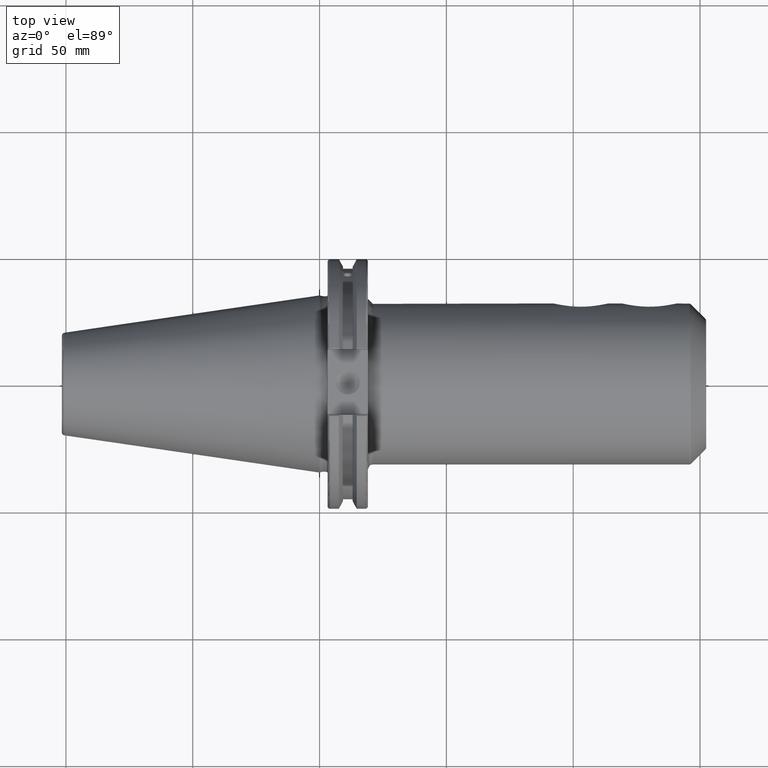
[diagram: clean part render]
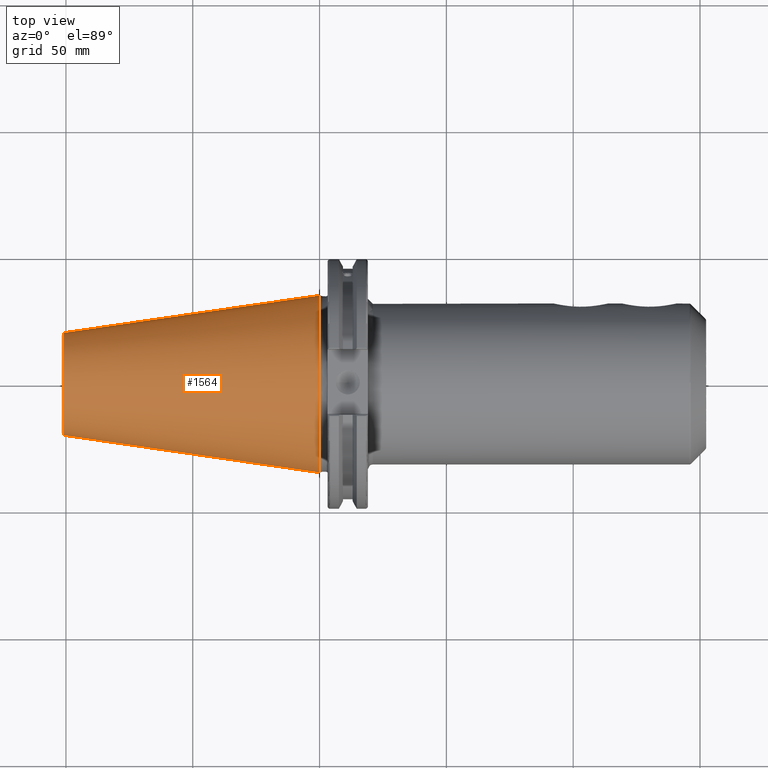
[diagram: same view with one face highlighted and labeled with its STEP entity id]
A machine part, top view. The second image highlights one B-rep face of the part: STEP entity #1564.
In plain terms, the highlighted conical surface has half-angle 8.297 deg.
Its self-contained STEP definition (entity closure, byte-faithful):
#189=FACE_OUTER_BOUND('',#298,.T.);
#298=EDGE_LOOP('',(#1362,#1363,#1364,#1365,#1366));
#389=CIRCLE('',#1735,20.233121911427);
#390=CIRCLE('',#1736,20.233121911427);
#394=CIRCLE('',#1742,34.925);
#481=LINE('',#3228,#573);
#573=VECTOR('',#2113,27.5166666666666);
#782=VERTEX_POINT('',#3215);
#783=VERTEX_POINT('',#3216);
#786=VERTEX_POINT('',#3226);
#991=EDGE_CURVE('',#782,#783,#389,.T.);
#992=EDGE_CURVE('',#783,#782,#390,.T.);
#996=EDGE_CURVE('',#786,#786,#394,.T.);
#997=EDGE_CURVE('',#786,#783,#481,.T.);
#1362=ORIENTED_EDGE('',*,*,#996,.F.);
#1363=ORIENTED_EDGE('',*,*,#997,.T.);
#1364=ORIENTED_EDGE('',*,*,#991,.F.);
#1365=ORIENTED_EDGE('',*,*,#992,.F.);
#1366=ORIENTED_EDGE('',*,*,#997,.F.);
#1500=CONICAL_SURFACE('',#1741,27.5166666666666,0.14481249823894);
#1564=ADVANCED_FACE('',(#189),#1500,.T.);
#1735=AXIS2_PLACEMENT_3D('',#3217,#2097,#2098);
#1736=AXIS2_PLACEMENT_3D('',#3218,#2099,#2100);
#1741=AXIS2_PLACEMENT_3D('',#3225,#2109,#2110);
#1742=AXIS2_PLACEMENT_3D('',#3227,#2111,#2112);
#2097=DIRECTION('center_axis',(-1.,0.,0.));
#2098=DIRECTION('ref_axis',(0.,-1.,3.06161699786838E-17));
#2099=DIRECTION('center_axis',(-1.,0.,0.));
#2100=DIRECTION('ref_axis',(0.,-1.,3.06161699786838E-17));
#2109=DIRECTION('center_axis',(1.,0.,0.));
#2110=DIRECTION('ref_axis',(0.,1.,0.));
#2111=DIRECTION('center_axis',(1.,0.,0.));
#2112=DIRECTION('ref_axis',(0.,0.,-1.));
#2113=DIRECTION('',(-0.989532981063281,0.144306893071729,1.76724974695192E-17));
#3215=CARTESIAN_POINT('',(-100.744306893072,-2.47784279855872E-15,20.233121911427));
#3216=CARTESIAN_POINT('',(-100.744306893072,-20.233121911427,-2.47784279855872E-15));
#3217=CARTESIAN_POINT('Origin',(-100.744306893072,0.,-3.09730349819841E-15));
#3218=CARTESIAN_POINT('Origin',(-100.744306893072,0.,-3.09730349819841E-15));
#3225=CARTESIAN_POINT('Origin',(-50.8,0.,0.));
#3226=CARTESIAN_POINT('',(-8.88178419700125E-15,-34.925,-4.27707894602213E-15));
#3227=CARTESIAN_POINT('Origin',(0.,0.,0.));
#3228=CARTESIAN_POINT('',(-50.8,-27.5166666666666,-3.3698197756538E-15));